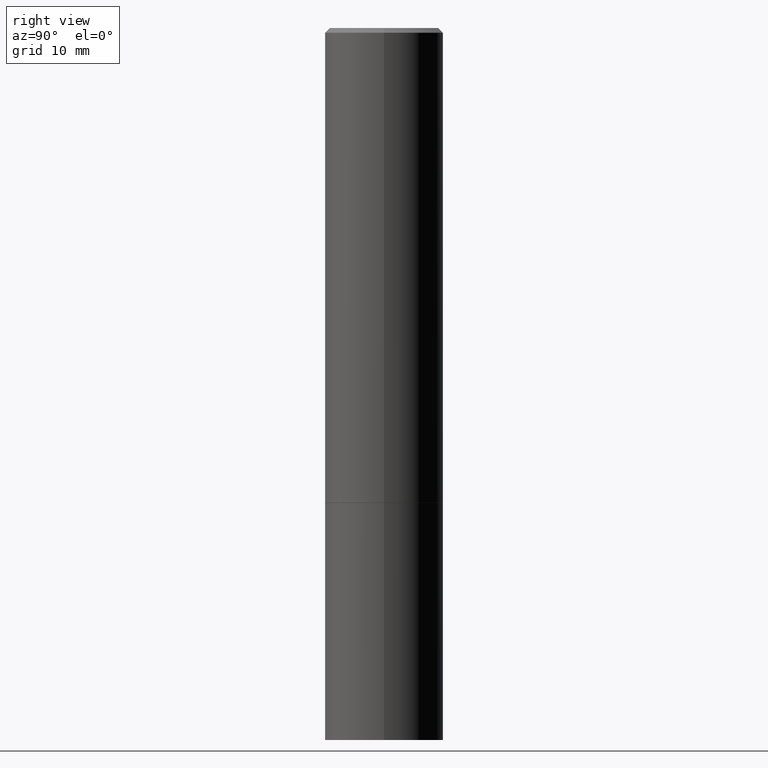
[diagram: clean part render]
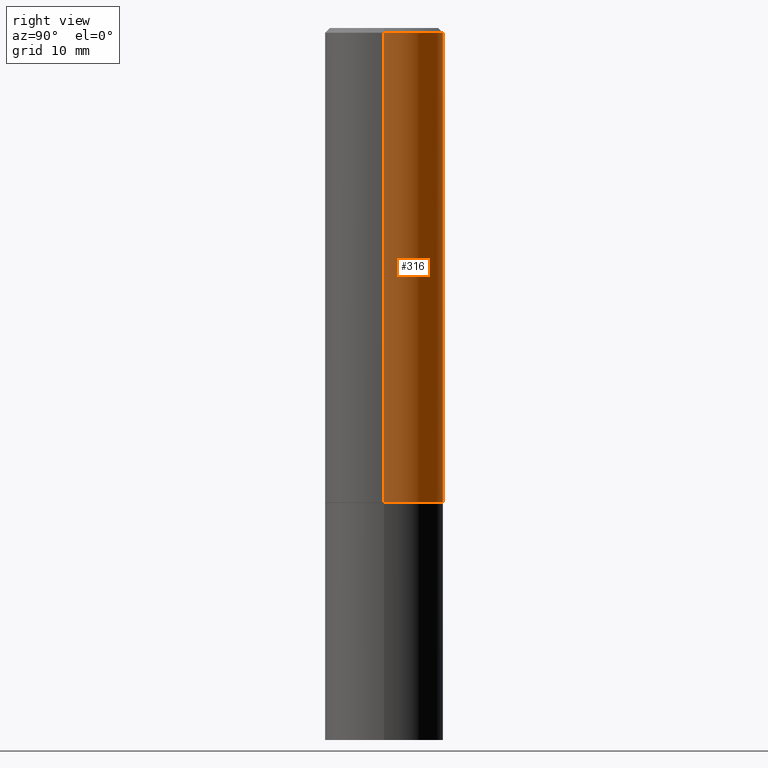
[diagram: same view with one face highlighted and labeled with its STEP entity id]
A machine part, right view. The second image highlights one B-rep face of the part: STEP entity #316.
In plain terms, the highlighted cylindrical surface (partial cylindrical patch) has radius 6.35 mm, axis along (-0, 0, 1).
Its self-contained STEP definition (entity closure, byte-faithful):
#36 = FACE_OUTER_BOUND ( 'NONE', #142, .T. ) ;
#38 = DIRECTION ( 'NONE',  ( 1.000000000000000000, -6.982962677686266711E-15, 0.000000000000000000 ) ) ;
#54 = VERTEX_POINT ( 'NONE', #116 ) ;
#58 = AXIS2_PLACEMENT_3D ( 'NONE', #180, #60, #174 ) ;
#60 = DIRECTION ( 'NONE',  ( -2.445468806185136597E-29, 3.491481338843145583E-15, 1.000000000000000000 ) ) ;
#68 = DIRECTION ( 'NONE',  ( 1.000000000000000000, -6.982962677686266711E-15, 4.876176775795935793E-29 ) ) ;
#76 = ORIENTED_EDGE ( 'NONE', *, *, #248, .F. ) ;
#90 = AXIS2_PLACEMENT_3D ( 'NONE', #176, #94, #68 ) ;
#91 = VECTOR ( 'NONE', #337, 39.37007874015748143 ) ;
#94 = DIRECTION ( 'NONE',  ( -2.445468806185136597E-29, 3.491481338843145583E-15, 1.000000000000000000 ) ) ;
#96 = EDGE_CURVE ( 'NONE', #138, #166, #342, .T. ) ;
#103 = CARTESIAN_POINT ( 'NONE',  ( -0.2499999999999998335, 1.776356839400249281E-15, -1.229733772563725605E-29 ) ) ;
#116 = CARTESIAN_POINT ( 'NONE',  ( 0.2499999999999996669, -1.784954126219743428E-15, -0.02000000000000003511 ) ) ;
#129 = CARTESIAN_POINT ( 'NONE',  ( -0.2500000000000000000, -1.748293572161902502E-15, -1.999000000000000110 ) ) ;
#131 = DIRECTION ( 'NONE',  ( -2.445468806185136877E-29, 3.491481338843145188E-15, 1.000000000000000000 ) ) ;
#135 = CIRCLE ( 'NONE', #327, 0.2499999999999996669 ) ;
#138 = VERTEX_POINT ( 'NONE', #331 ) ;
#142 = EDGE_LOOP ( 'NONE', ( #315, #255, #308, #76 ) ) ;
#144 = VERTEX_POINT ( 'NONE', #360 ) ;
#166 = VERTEX_POINT ( 'NONE', #129 ) ;
#174 = DIRECTION ( 'NONE',  ( 1.000000000000000000, -6.982962677686266711E-15, 0.000000000000000000 ) ) ;
#176 = CARTESIAN_POINT ( 'NONE',  ( 0.000000000000000000, 0.000000000000000000, 0.000000000000000000 ) ) ;
#178 = CYLINDRICAL_SURFACE ( 'NONE', #90, 0.2499999999999998335 ) ;
#180 = CARTESIAN_POINT ( 'NONE',  ( 4.888492143564088712E-29, -6.979471196347448158E-15, -1.999000000000000110 ) ) ;
#185 = DIRECTION ( 'NONE',  ( -2.445468806185136597E-29, 3.491481338843145583E-15, 1.000000000000000000 ) ) ;
#190 = EDGE_CURVE ( 'NONE', #166, #144, #328, .T. ) ;
#197 = VECTOR ( 'NONE', #131, 39.37007874015748143 ) ;
#220 = CARTESIAN_POINT ( 'NONE',  ( 0.2499999999999998335, -1.745740669421565494E-15, 1.219044193948983107E-29 ) ) ;
#248 = EDGE_CURVE ( 'NONE', #138, #54, #306, .T. ) ;
#255 = ORIENTED_EDGE ( 'NONE', *, *, #190, .T. ) ;
#306 = LINE ( 'NONE', #220, #91 ) ;
#308 = ORIENTED_EDGE ( 'NONE', *, *, #354, .F. ) ;
#315 = ORIENTED_EDGE ( 'NONE', *, *, #96, .T. ) ;
#316 = ADVANCED_FACE ( 'NONE', ( #36 ), #178, .T. ) ;
#327 = AXIS2_PLACEMENT_3D ( 'NONE', #329, #185, #38 ) ;
#328 = LINE ( 'NONE', #103, #197 ) ;
#329 = CARTESIAN_POINT ( 'NONE',  ( 4.890937612370281041E-31, -6.982962677686302702E-17, -0.02000000000000003511 ) ) ;
#331 = CARTESIAN_POINT ( 'NONE',  ( 0.2500000000000000000, -8.725211865769015625E-15, -1.999000000000000110 ) ) ;
#337 = DIRECTION ( 'NONE',  ( -2.445468806185136877E-29, 3.491481338843145188E-15, 1.000000000000000000 ) ) ;
#342 = CIRCLE ( 'NONE', #58, 0.2500000000000000000 ) ;
#354 = EDGE_CURVE ( 'NONE', #54, #144, #135, .T. ) ;
#360 = CARTESIAN_POINT ( 'NONE',  ( -0.2499999999999996669, 1.675911042644701210E-15, -0.02000000000000003511 ) ) ;